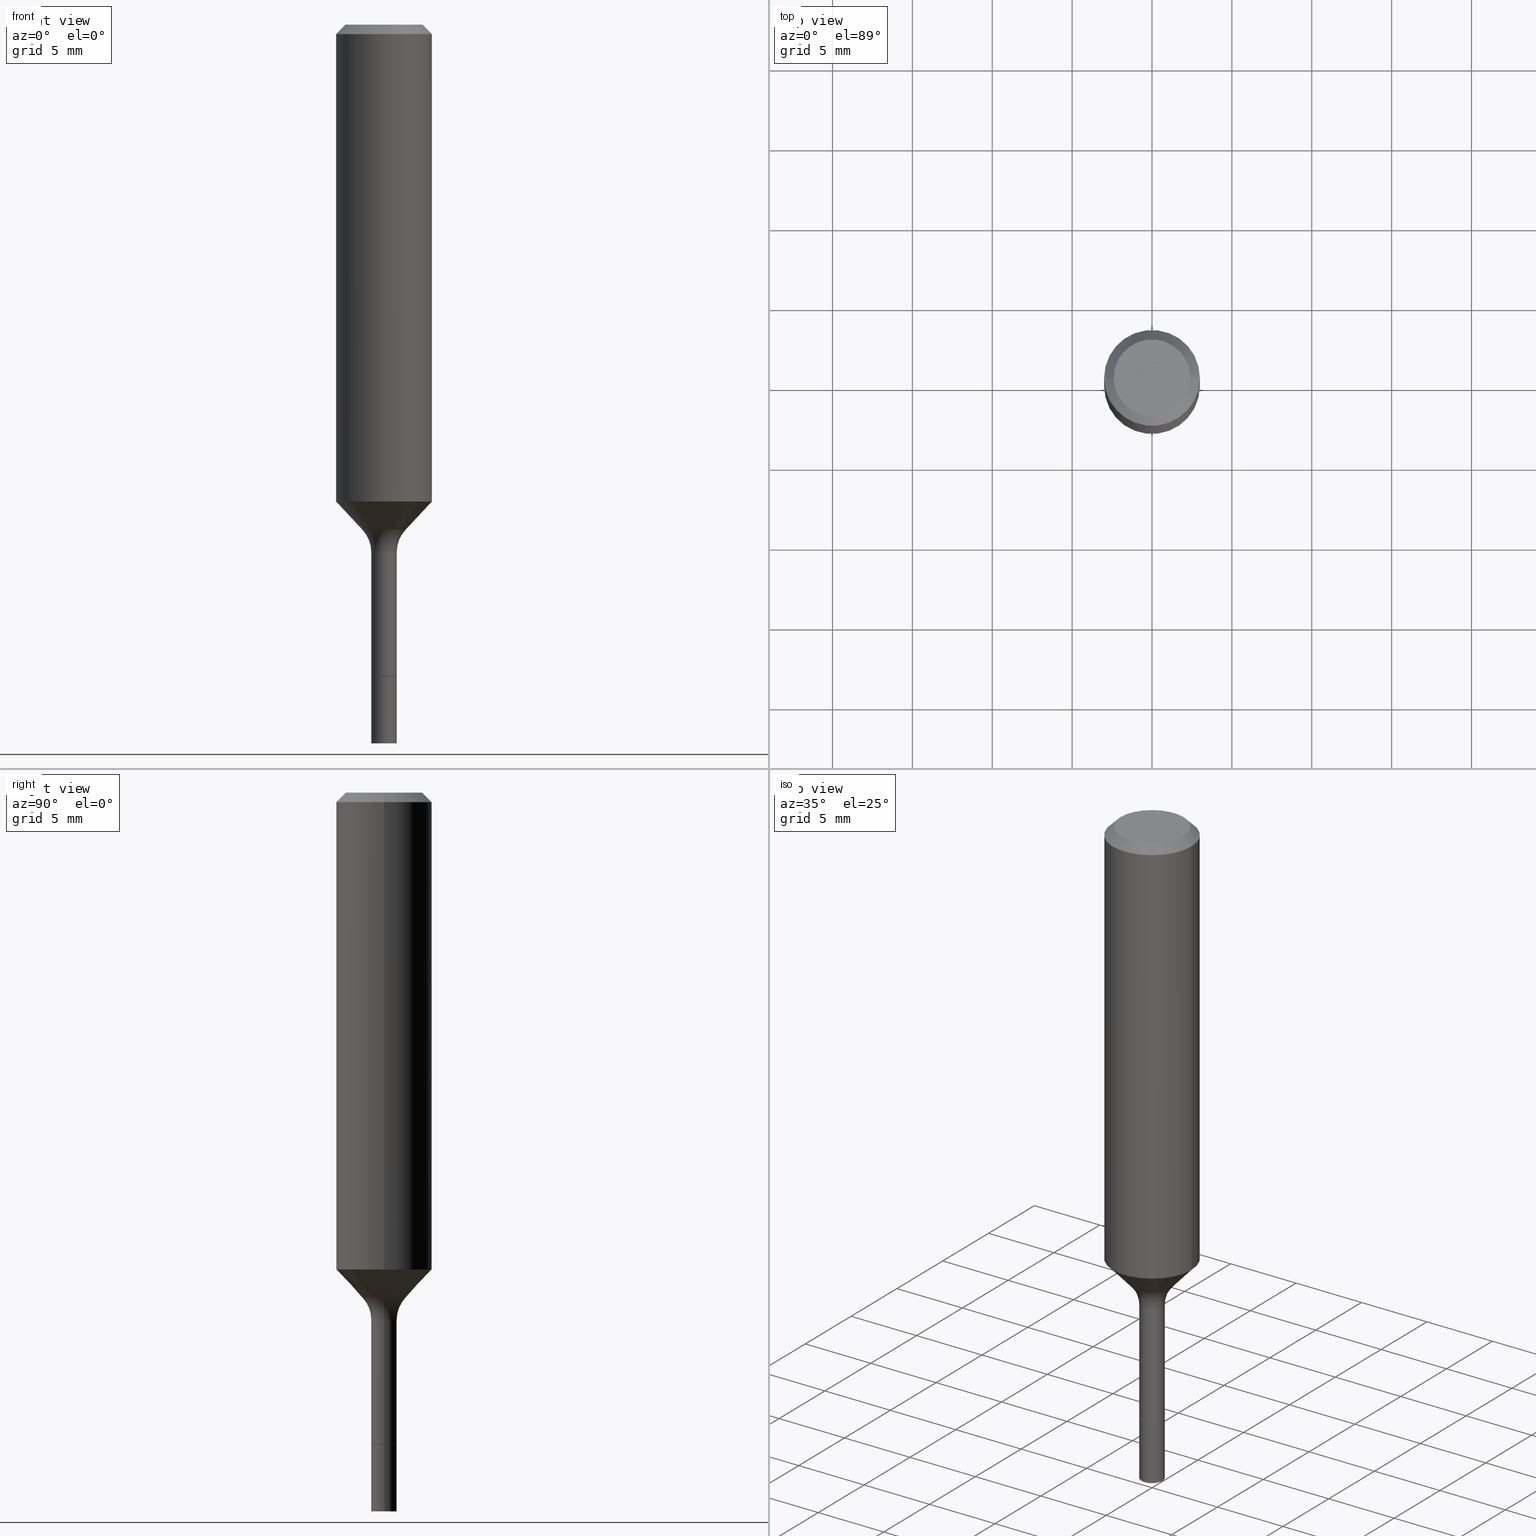
[diagram: canonical four-view strip — front | top / right | iso, engineering-drawing reading convention]
A machine part, canonical four-view strip (front | top / right | iso — engineering-drawing reading convention). The complete STEP part file that produces these views, byte-faithful:
ISO-10303-21;
HEADER;
FILE_DESCRIPTION (( 'STEP AP203' ),
    '1' );
FILE_NAME ('67061.STEP',
    '2025-04-01T15:27:11',
    ( '' ),
    ( '' ),
    'SwSTEP 2.0',
    'SolidWorks 2024',
    '' );
FILE_SCHEMA (( 'CONFIG_CONTROL_DESIGN' ));
ENDSEC;

DATA;
#1 = EDGE_CURVE ( 'NONE', #371, #332, #56, .T. ) ;
#2 = DIRECTION ( 'NONE',  ( -1.000000000000000000, 7.105427357601001859E-15, 0.000000000000000000 ) ) ;
#3 = DIRECTION ( 'NONE',  ( -2.445468806185136597E-29, 3.491481338843145583E-15, 1.000000000000000000 ) ) ;
#4 = ORIENTED_EDGE ( 'NONE', *, *, #303, .F. ) ;
#5 = CIRCLE ( 'NONE', #214, 0.03099999999999999978 ) ;
#6 = LINE ( 'NONE', #87, #180 ) ;
#7 = CARTESIAN_POINT ( 'NONE',  ( 0.1181000000000000660, -8.246878922347485584E-16, 5.758764772215003944E-30 ) ) ;
#8 = APPROVAL_STATUS ( 'not_yet_approved' ) ;
#9 = AXIS2_PLACEMENT_3D ( 'NONE', #17, #375, #100 ) ;
#10 = CARTESIAN_POINT ( 'NONE',  ( 7.545787641473140628E-46, -1.077338491108201769E-31, -3.085620075131671975E-17 ) ) ;
#11 = EDGE_CURVE ( 'NONE', #438, #95, #38, .T. ) ;
#12 = DIRECTION ( 'NONE',  ( -2.445468806185136877E-29, 3.491481338843145188E-15, 1.000000000000000000 ) ) ;
#13 = DIRECTION ( 'NONE',  ( -2.445468806185136597E-29, 3.491481338843145583E-15, 1.000000000000000000 ) ) ;
#14 = CONICAL_SURFACE ( 'NONE', #158, 0.03099999999999999978, 0.7853981633975507526 ) ;
#15 = ORIENTED_EDGE ( 'NONE', *, *, #456, .T. ) ;
#16 = AXIS2_PLACEMENT_3D ( 'NONE', #354, #35, #331 ) ;
#17 = CARTESIAN_POINT ( 'NONE',  ( 2.874208474715579591E-29, -4.103607957718737333E-15, -1.175320031662667297 ) ) ;
#18 = CARTESIAN_POINT ( 'NONE',  ( 3.178375807398822119E-29, -4.537878296094436237E-15, -1.299700000000000077 ) ) ;
#19 = CC_DESIGN_APPROVAL ( #153, ( #113 ) ) ;
#20 = EDGE_LOOP ( 'NONE', ( #497, #512, #167, #284 ) ) ;
#21 = ADVANCED_FACE ( 'NONE', ( #491 ), #239, .T. ) ;
#22 = CARTESIAN_POINT ( 'NONE',  ( 4.332637083918206427E-29, -6.185857488028401081E-15, -1.771700000000000053 ) ) ;
#23 = CIRCLE ( 'NONE', #429, 0.03150000000000032635 ) ;
#24 = LINE ( 'NONE', #189, #203 ) ;
#25 = EDGE_CURVE ( 'NONE', #33, #516, #186, .T. ) ;
#26 = CYLINDRICAL_SURFACE ( 'NONE', #269, 0.03150000000000015982 ) ;
#27 = AXIS2_PLACEMENT_3D ( 'NONE', #518, #129, #250 ) ;
#28 = EDGE_CURVE ( 'NONE', #516, #288, #316, .T. ) ;
#29 = DIRECTION ( 'NONE',  ( -2.445468806185136877E-29, 3.491481338843145188E-15, 1.000000000000000000 ) ) ;
#30 = PERSON_AND_ORGANIZATION ( #68, #313 ) ;
#31 = AXIS2_PLACEMENT_3D ( 'NONE', #145, #184, #307 ) ;
#32 = MECHANICAL_CONTEXT ( 'NONE', #294, 'mechanical' ) ;
#33 = VERTEX_POINT ( 'NONE', #408 ) ;
#34 = PERSON_AND_ORGANIZATION_ROLE ( 'creator' ) ;
#35 = DIRECTION ( 'NONE',  ( -2.438088387897960049E-29, 3.491481338843145188E-15, 1.000000000000000000 ) ) ;
#36 = DIRECTION ( 'NONE',  ( 2.445468806185136597E-29, -3.491481338843145583E-15, -1.000000000000000000 ) ) ;
#37 = EDGE_LOOP ( 'NONE', ( #484, #413, #15, #169 ) ) ;
#38 = CIRCLE ( 'NONE', #110, 0.03099999999999999978 ) ;
#39 = VECTOR ( 'NONE', #98, 39.37007874015748143 ) ;
#40 = VECTOR ( 'NONE', #501, 39.37007874015748854 ) ;
#41 = DIRECTION ( 'NONE',  ( 1.000000000000000000, -6.982962677686276177E-15, 0.000000000000000000 ) ) ;
#42 = ORIENTED_EDGE ( 'NONE', *, *, #177, .T. ) ;
#43 = EDGE_CURVE ( 'NONE', #455, #264, #299, .T. ) ;
#44 = CALENDAR_DATE ( 2025, 1, 4 ) ;
#45 = CARTESIAN_POINT ( 'NONE',  ( -0.03149999999999999328, -4.849126849507717412E-15, -1.606200000000000294 ) ) ;
#46 = COORDINATED_UNIVERSAL_TIME_OFFSET ( 5, 0, .BEHIND. ) ;
#47 = ORIENTED_EDGE ( 'NONE', *, *, #43, .T. ) ;
#48 = PERSON_AND_ORGANIZATION_ROLE ( 'design_owner' ) ;
#49 = CARTESIAN_POINT ( 'NONE',  ( 4.332637083918206427E-29, -6.185857488028401081E-15, -1.771700000000000053 ) ) ;
#50 = EDGE_LOOP ( 'NONE', ( #124, #251, #135, #279 ) ) ;
#51 = COORDINATED_UNIVERSAL_TIME_OFFSET ( 5, 0, .BEHIND. ) ;
#52 = AXIS2_PLACEMENT_3D ( 'NONE', #314, #36, #382 ) ;
#53 = DIRECTION ( 'NONE',  ( 1.000000000000000000, -6.982962677686262766E-15, 0.000000000000000000 ) ) ;
#54 = EDGE_CURVE ( 'NONE', #33, #183, #226, .T. ) ;
#55 = LINE ( 'NONE', #459, #114 ) ;
#56 = LINE ( 'NONE', #7, #200 ) ;
#57 = FACE_OUTER_BOUND ( 'NONE', #118, .T. ) ;
#58 = DIRECTION ( 'NONE',  ( 0.000000000000000000, 0.000000000000000000, 1.000000000000000000 ) ) ;
#59 = DIRECTION ( 'NONE',  ( 2.445468806185136597E-29, -3.491481338843145583E-15, -1.000000000000000000 ) ) ;
#60 = CARTESIAN_POINT ( 'NONE',  ( 0.05299170387046631819, -4.717422622666518249E-15, -1.245140131195000333 ) ) ;
#61 = VECTOR ( 'NONE', #402, 39.37007874015748854 ) ;
#62 = LINE ( 'NONE', #179, #39 ) ;
#63 = EDGE_LOOP ( 'NONE', ( #4, #42, #79, #216 ) ) ;
#64 = ADVANCED_FACE ( 'NONE', ( #57 ), #414, .F. ) ;
#65 = DIRECTION ( 'NONE',  ( 1.000000000000000000, -6.982962677686270655E-15, 0.000000000000000000 ) ) ;
#66 = ORIENTED_EDGE ( 'NONE', *, *, #303, .T. ) ;
#67 = CARTESIAN_POINT ( 'NONE',  ( -0.05299170387046632513, -3.970854829904946346E-15, -1.245140131195000333 ) ) ;
#68 = PERSON ( 'UNSPECIFIED', 'UNSPECIFIED', 'UNSPECIFIED', ('UNSPECIFIED'), ('UNSPECIFIED'), ('UNSPECIFIED') ) ;
#69 = PRODUCT ( '67061', '67061', '', ( #32 ) ) ;
#70 = EDGE_CURVE ( 'NONE', #323, #500, #62, .T. ) ;
#71 = AXIS2_PLACEMENT_3D ( 'NONE', #320, #472, #440 ) ;
#72 = AXIS2_PLACEMENT_3D ( 'NONE', #400, #195, #233 ) ;
#73 = FACE_OUTER_BOUND ( 'NONE', #468, .T. ) ;
#74 = CIRCLE ( 'NONE', #272, 0.05299170387046631819 ) ;
#75 = EDGE_LOOP ( 'NONE', ( #144, #390, #202, #253 ) ) ;
#76 = CYLINDRICAL_SURFACE ( 'NONE', #187, 0.1181000000000000660 ) ;
#77 = SECURITY_CLASSIFICATION_LEVEL ( 'unclassified' ) ;
#78 = CARTESIAN_POINT ( 'NONE',  ( 3.044951350166641227E-29, -4.347383532312049754E-15, -1.245140131195000333 ) ) ;
#79 = ORIENTED_EDGE ( 'NONE', *, *, #270, .T. ) ;
#80 = CARTESIAN_POINT ( 'NONE',  ( 0.000000000000000000, 0.000000000000000000, 0.000000000000000000 ) ) ;
#81 = EDGE_CURVE ( 'NONE', #159, #450, #55, .T. ) ;
#82 = DIRECTION ( 'NONE',  ( 1.000000000000000000, -6.982962677686267499E-15, 4.883557194083113462E-29 ) ) ;
#83 = ORIENTED_EDGE ( 'NONE', *, *, #482, .T. ) ;
#84 = CIRCLE ( 'NONE', #480, 0.03150000000000000022 ) ;
#85 = DIRECTION ( 'NONE',  ( 2.438088387897960049E-29, -3.491481338843145188E-15, -1.000000000000000000 ) ) ;
#86 = CIRCLE ( 'NONE', #483, 0.1180999999999999966 ) ;
#87 = CARTESIAN_POINT ( 'NONE',  ( -0.03099999999999999978, -5.389494819033650773E-15, -1.606700000000000017 ) ) ;
#88 = EDGE_LOOP ( 'NONE', ( #377, #475 ) ) ;
#89 = APPROVAL_PERSON_ORGANIZATION ( #485, #153, #173 ) ;
#90 = CARTESIAN_POINT ( 'NONE',  ( -0.1181000000000001354, -3.264456986786058347E-15, -1.175320031662667297 ) ) ;
#91 = ORIENTED_EDGE ( 'NONE', *, *, #492, .T. ) ;
#92 = APPROVAL_ROLE ( '' ) ;
#93 = APPROVAL ( #447, 'UNSPECIFIED' ) ;
#94 = CARTESIAN_POINT ( 'NONE',  ( -0.03149999999999998634, 2.238209617644314615E-16, -1.549464553430294451E-30 ) ) ;
#95 = VERTEX_POINT ( 'NONE', #257 ) ;
#96 = AXIS2_PLACEMENT_3D ( 'NONE', #454, #59, #217 ) ;
#97 = FACE_OUTER_BOUND ( 'NONE', #88, .T. ) ;
#98 = DIRECTION ( 'NONE',  ( -2.445468806185136877E-29, 3.491481338843145188E-15, 1.000000000000000000 ) ) ;
#99 = ORIENTED_EDGE ( 'NONE', *, *, #506, .F. ) ;
#100 = DIRECTION ( 'NONE',  ( 1.000000000000000000, -6.982962677686269077E-15, 0.000000000000000000 ) ) ;
#101 = EDGE_LOOP ( 'NONE', ( #471, #344 ) ) ;
#102 = ADVANCED_FACE ( 'NONE', ( #306 ), #415, .F. ) ;
#103 = VERTEX_POINT ( 'NONE', #490 ) ;
#104 = CONICAL_SURFACE ( 'NONE', #96, 0.1180999999999999966, 0.7853981633974463916 ) ;
#105 = DIRECTION ( 'NONE',  ( -2.445468806185136597E-29, 3.491481338843145583E-15, 1.000000000000000000 ) ) ;
#106 = ORIENTED_EDGE ( 'NONE', *, *, #281, .T. ) ;
#107 = ADVANCED_FACE ( 'NONE', ( #215 ), #395, .T. ) ;
#108 = CARTESIAN_POINT ( 'NONE',  ( -0.03149999999999995859, -4.849126849507717412E-15, -1.299700000000000077 ) ) ;
#109 = DIRECTION ( 'NONE',  ( -2.445468806185136597E-29, 3.491481338843145583E-15, 1.000000000000000000 ) ) ;
#110 = AXIS2_PLACEMENT_3D ( 'NONE', #172, #175, #337 ) ;
#111 = AXIS2_PLACEMENT_3D ( 'NONE', #462, #225, #149 ) ;
#112 = LOCAL_TIME ( 11, 27, 11.00000000000000000, #398 ) ;
#113 = PRODUCT_DEFINITION ( 'UNKNOWN', '', #154, #234 ) ;
#114 = VECTOR ( 'NONE', #146, 39.37007874015748143 ) ;
#115 = ORIENTED_EDGE ( 'NONE', *, *, #293, .F. ) ;
#116 = PERSON_AND_ORGANIZATION ( #68, #313 ) ;
#117 = CARTESIAN_POINT ( 'NONE',  ( 7.545787641473140628E-46, -1.077338491108201769E-31, -3.085620075131671975E-17 ) ) ;
#118 = EDGE_LOOP ( 'NONE', ( #106, #91 ) ) ;
#119 = ADVANCED_FACE ( 'NONE', ( #339 ), #104, .T. ) ;
#120 = CALENDAR_DATE ( 2025, 1, 4 ) ;
#121 = DIRECTION ( 'NONE',  ( -2.445468806185136877E-29, 3.491481338843145188E-15, 1.000000000000000000 ) ) ;
#122 = ORIENTED_EDGE ( 'NONE', *, *, #412, .T. ) ;
#123 = CARTESIAN_POINT ( 'NONE',  ( 0.1181000000000001354, -4.928295849953486385E-15, -1.175320031662667297 ) ) ;
#124 = ORIENTED_EDGE ( 'NONE', *, *, #43, .F. ) ;
#125 = AXIS2_PLACEMENT_3D ( 'NONE', #499, #374, #494 ) ;
#126 = CIRCLE ( 'NONE', #439, 0.09447999999999998066 ) ;
#127 = APPLICATION_PROTOCOL_DEFINITION ( 'international standard', 'config_control_design', 1994, #150 ) ;
#128 = CARTESIAN_POINT ( 'NONE',  ( 0.000000000000000000, 0.000000000000000000, 0.000000000000000000 ) ) ;
#129 = DIRECTION ( 'NONE',  ( -2.445468806185136597E-29, 3.491481338843145583E-15, 1.000000000000000000 ) ) ;
#130 = ORIENTED_EDGE ( 'NONE', *, *, #218, .T. ) ;
#131 = DATE_TIME_ROLE ( 'creation_date' ) ;
#132 = DIRECTION ( 'NONE',  ( -6.982962677686266711E-15, -1.000000000000000000, 3.491481338843145583E-15 ) ) ;
#133 = APPROVAL_PERSON_ORGANIZATION ( #30, #138, #473 ) ;
#134 = DIRECTION ( 'NONE',  ( 1.000000000000000000, -6.982962677686267499E-15, 4.875432709231658792E-29 ) ) ;
#135 = ORIENTED_EDGE ( 'NONE', *, *, #70, .T. ) ;
#136 = ORIENTED_EDGE ( 'NONE', *, *, #281, .F. ) ;
#137 = AXIS2_PLACEMENT_3D ( 'NONE', #252, #393, #157 ) ;
#138 = APPROVAL ( #321, 'UNSPECIFIED' ) ;
#139 = AXIS2_PLACEMENT_3D ( 'NONE', #367, #132, #53 ) ;
#140 = ORIENTED_EDGE ( 'NONE', *, *, #325, .F. ) ;
#141 =( LENGTH_UNIT ( ) NAMED_UNIT ( * ) SI_UNIT ( $, .METRE. ) );
#142 = EDGE_CURVE ( 'NONE', #323, #455, #23, .T. ) ;
#143 = DIRECTION ( 'NONE',  ( -2.445468806185136597E-29, 3.491481338843145583E-15, 1.000000000000000000 ) ) ;
#144 = ORIENTED_EDGE ( 'NONE', *, *, #54, .T. ) ;
#145 = CARTESIAN_POINT ( 'NONE',  ( 3.929134730897659292E-29, -5.609763067119282027E-15, -1.606700000000000017 ) ) ;
#146 = DIRECTION ( 'NONE',  ( -0.7071067811865461294, 2.468850131082242072E-15, -0.7071067811865489050 ) ) ;
#147 = ORIENTED_EDGE ( 'NONE', *, *, #81, .F. ) ;
#148 = ADVANCED_FACE ( 'NONE', ( #433 ), #165, .T. ) ;
#149 = DIRECTION ( 'NONE',  ( 1.000000000000000000, -6.982962677686265133E-15, 0.000000000000000000 ) ) ;
#150 = APPLICATION_CONTEXT ( 'configuration controlled 3d designs of mechanical parts and assemblies' ) ;
#151 = DIRECTION ( 'NONE',  ( 0.7071067811866199593, -2.468850131083015945E-15, 0.7071067811864750752 ) ) ;
#152 = AXIS2_PLACEMENT_3D ( 'NONE', #128, #286, #444 ) ;
#153 = APPROVAL ( #8, 'UNSPECIFIED' ) ;
#154 = PRODUCT_DEFINITION_FORMATION_WITH_SPECIFIED_SOURCE ( 'ANY', '', #69, .NOT_KNOWN. ) ;
#155 =( NAMED_UNIT ( * ) PLANE_ANGLE_UNIT ( ) SI_UNIT ( $, .RADIAN. ) );
#156 = CARTESIAN_POINT ( 'NONE',  ( 3.929134730897659292E-29, -5.609763067119282027E-15, -1.606700000000000017 ) ) ;
#157 = DIRECTION ( 'NONE',  ( 1.000000000000000000, -6.982962677686261189E-15, 0.000000000000000000 ) ) ;
#158 = AXIS2_PLACEMENT_3D ( 'NONE', #156, #481, #368 ) ;
#159 = VERTEX_POINT ( 'NONE', #363 ) ;
#160 = ADVANCED_FACE ( 'NONE', ( #330 ), #14, .T. ) ;
#161 = FACE_OUTER_BOUND ( 'NONE', #164, .T. ) ;
#162 = DATE_AND_TIME ( #120, #258 ) ;
#163 = CARTESIAN_POINT ( 'NONE',  ( 3.927911996494567051E-29, -5.608017326449861312E-15, -1.606200000000000294 ) ) ;
#164 = EDGE_LOOP ( 'NONE', ( #488, #130, #99, #276 ) ) ;
#165 = CYLINDRICAL_SURFACE ( 'NONE', #386, 0.1181000000000000660 ) ;
#166 = DIRECTION ( 'NONE',  ( -2.445468806185136597E-29, 3.491481338843145583E-15, 1.000000000000000000 ) ) ;
#167 = ORIENTED_EDGE ( 'NONE', *, *, #25, .T. ) ;
#168 = PLANE ( 'NONE',  #16 ) ;
#169 = ORIENTED_EDGE ( 'NONE', *, *, #392, .F. ) ;
#170 = CONICAL_SURFACE ( 'NONE', #71, 0.05299170387046631819, 0.7504915783575633048 ) ;
#171 = LINE ( 'NONE', #94, #242 ) ;
#172 = CARTESIAN_POINT ( 'NONE',  ( 3.929134730897659292E-29, -5.609763067119282027E-15, -1.606700000000000017 ) ) ;
#173 = APPROVAL_ROLE ( '' ) ;
#174 = DIRECTION ( 'NONE',  ( -2.445468806185136597E-29, 3.491481338843145583E-15, 1.000000000000000000 ) ) ;
#175 = DIRECTION ( 'NONE',  ( -2.445468806185136597E-29, 3.491481338843145583E-15, 1.000000000000000000 ) ) ;
#176 = DIRECTION ( 'NONE',  ( 1.000000000000000000, -6.982962677686276177E-15, 0.000000000000000000 ) ) ;
#177 = EDGE_CURVE ( 'NONE', #510, #288, #453, .T. ) ;
#178 = CIRCLE ( 'NONE', #111, 0.03149999999999995859 ) ;
#179 = CARTESIAN_POINT ( 'NONE',  ( 0.03150000000000015982, -5.829726391466400943E-15, -1.606700000000000017 ) ) ;
#180 = VECTOR ( 'NONE', #449, 39.37007874015748143 ) ;
#181 = CARTESIAN_POINT ( 'NONE',  ( 0.03149999999999995859, -4.757841620441553575E-15, -1.299700000000000077 ) ) ;
#182 = DIRECTION ( 'NONE',  ( -2.445468806185136877E-29, 3.491481338843145188E-15, 1.000000000000000000 ) ) ;
#183 = VERTEX_POINT ( 'NONE', #45 ) ;
#184 = DIRECTION ( 'NONE',  ( -2.445468806185136597E-29, 3.491481338843145583E-15, 1.000000000000000000 ) ) ;
#185 = CC_DESIGN_DATE_AND_TIME_ASSIGNMENT ( #285, #131, ( #113 ) ) ;
#186 = LINE ( 'NONE', #343, #220 ) ;
#187 = AXIS2_PLACEMENT_3D ( 'NONE', #80, #232, #249 ) ;
#188 = DIRECTION ( 'NONE',  ( -1.000000000000000000, 6.982962677686265922E-15, -4.876176775795935793E-29 ) ) ;
#189 = CARTESIAN_POINT ( 'NONE',  ( 0.03099999999999999978, -5.826234910127556358E-15, -1.606700000000000017 ) ) ;
#190 = CARTESIAN_POINT ( 'NONE',  ( 3.929134730897659292E-29, -5.609763067119282027E-15, -1.606700000000000017 ) ) ;
#191 = ADVANCED_FACE ( 'NONE', ( #333 ), #76, .T. ) ;
#192 = AXIS2_PLACEMENT_3D ( 'NONE', #287, #166, #82 ) ;
#193 = VECTOR ( 'NONE', #29, 39.37007874015748143 ) ;
#194 = ADVANCED_FACE ( 'NONE', ( #243 ), #237, .T. ) ;
#195 = DIRECTION ( 'NONE',  ( -2.445468806185136597E-29, 3.491481338843145583E-15, 1.000000000000000000 ) ) ;
#196 = ORIENTED_EDGE ( 'NONE', *, *, #428, .F. ) ;
#197 = CALENDAR_DATE ( 2025, 1, 4 ) ;
#198 = CARTESIAN_POINT ( 'NONE',  ( -0.05299170387046631819, -3.970854829904947135E-15, -1.245140131195000333 ) ) ;
#199 = PERSON_AND_ORGANIZATION ( #68, #313 ) ;
#200 = VECTOR ( 'NONE', #12, 39.37007874015748143 ) ;
#201 = AXIS2_PLACEMENT_3D ( 'NONE', #411, #296, #65 ) ;
#202 = ORIENTED_EDGE ( 'NONE', *, *, #28, .F. ) ;
#203 = VECTOR ( 'NONE', #151, 39.37007874015748143 ) ;
#204 = CIRCLE ( 'NONE', #9, 0.1181000000000001354 ) ;
#205 = CARTESIAN_POINT ( 'NONE',  ( 0.03150000000000032635, -6.405820812375520786E-15, -1.771700000000000053 ) ) ;
#206 = EDGE_LOOP ( 'NONE', ( #355, #261, #458, #219 ) ) ;
#207 = LOCAL_TIME ( 11, 27, 11.00000000000000000, #51 ) ;
#208 = CC_DESIGN_DATE_AND_TIME_ASSIGNMENT ( #162, #244, ( #341 ) ) ;
#209 = COORDINATED_UNIVERSAL_TIME_OFFSET ( 5, 0, .BEHIND. ) ;
#210 = FACE_OUTER_BOUND ( 'NONE', #304, .T. ) ;
#211 = ORIENTED_EDGE ( 'NONE', *, *, #362, .T. ) ;
#212 = EDGE_CURVE ( 'NONE', #332, #450, #297, .T. ) ;
#213 = EDGE_LOOP ( 'NONE', ( #315, #479, #403, #147 ) ) ;
#214 = AXIS2_PLACEMENT_3D ( 'NONE', #434, #478, #278 ) ;
#215 = FACE_OUTER_BOUND ( 'NONE', #37, .T. ) ;
#216 = ORIENTED_EDGE ( 'NONE', *, *, #469, .F. ) ;
#217 = DIRECTION ( 'NONE',  ( -1.000000000000000000, 6.982962677686266711E-15, 0.000000000000000000 ) ) ;
#218 = EDGE_CURVE ( 'NONE', #510, #361, #391, .T. ) ;
#219 = ORIENTED_EDGE ( 'NONE', *, *, #28, .T. ) ;
#220 = VECTOR ( 'NONE', #263, 39.37007874015748143 ) ;
#221 = AXIS2_PLACEMENT_3D ( 'NONE', #18, #143, #260 ) ;
#222 = CARTESIAN_POINT ( 'NONE',  ( -0.03150000000000015982, -5.385942105354849086E-15, -1.606700000000000017 ) ) ;
#223 = ORIENTED_EDGE ( 'NONE', *, *, #506, .T. ) ;
#224 = LOCAL_TIME ( 11, 27, 11.00000000000000000, #489 ) ;
#225 = DIRECTION ( 'NONE',  ( -2.445468806185136597E-29, 3.491481338843145583E-15, 1.000000000000000000 ) ) ;
#226 = CIRCLE ( 'NONE', #347, 0.03150000000000000022 ) ;
#227 = CIRCLE ( 'NONE', #139, 0.07999999999999996003 ) ;
#228 = ADVANCED_FACE ( 'NONE', ( #477 ), #280, .T. ) ;
#229 = PERSON_AND_ORGANIZATION_ROLE ( 'design_supplier' ) ;
#230 = ADVANCED_FACE ( 'NONE', ( #161 ), #170, .T. ) ;
#231 = ORIENTED_EDGE ( 'NONE', *, *, #142, .T. ) ;
#232 = DIRECTION ( 'NONE',  ( -2.445468806185136597E-29, 3.491481338843145583E-15, 1.000000000000000000 ) ) ;
#233 = DIRECTION ( 'NONE',  ( 1.000000000000000000, -6.982962677686269077E-15, 0.000000000000000000 ) ) ;
#234 = DESIGN_CONTEXT ( 'detailed design', #150, 'design' ) ;
#235 = ORIENTED_EDGE ( 'NONE', *, *, #212, .F. ) ;
#236 = PERSON_AND_ORGANIZATION ( #68, #313 ) ;
#237 = CYLINDRICAL_SURFACE ( 'NONE', #152, 0.03149999999999998634 ) ;
#238 = FACE_OUTER_BOUND ( 'NONE', #20, .T. ) ;
#239 = CONICAL_SURFACE ( 'NONE', #52, 0.1180999999999999966, 0.7853981633974463916 ) ;
#240 = EDGE_LOOP ( 'NONE', ( #211, #300, #292, #407 ) ) ;
#241 = PERSON_AND_ORGANIZATION ( #68, #313 ) ;
#242 = VECTOR ( 'NONE', #121, 39.37007874015748143 ) ;
#243 = FACE_OUTER_BOUND ( 'NONE', #75, .T. ) ;
#244 = DATE_TIME_ROLE ( 'classification_date' ) ;
#245 = CARTESIAN_POINT ( 'NONE',  ( 0.09447999999999998066, -7.704367267948738690E-16, -3.085620075131172158E-17 ) ) ;
#246 = ORIENTED_EDGE ( 'NONE', *, *, #1, .F. ) ;
#247 = CC_DESIGN_PERSON_AND_ORGANIZATION_ASSIGNMENT ( #236, #48, ( #69 ) ) ;
#248 = LOCAL_TIME ( 11, 27, 11.00000000000000000, #46 ) ;
#249 = DIRECTION ( 'NONE',  ( 1.000000000000000000, -6.982962677686266711E-15, 4.876176775795936353E-29 ) ) ;
#250 = DIRECTION ( 'NONE',  ( 1.000000000000000000, -6.982962677686281699E-15, 0.000000000000000000 ) ) ;
#251 = ORIENTED_EDGE ( 'NONE', *, *, #293, .T. ) ;
#252 = CARTESIAN_POINT ( 'NONE',  ( 3.044951350166641227E-29, -4.347383532312049754E-15, -1.245140131195000333 ) ) ;
#253 = ORIENTED_EDGE ( 'NONE', *, *, #25, .F. ) ;
#254 = AXIS2_PLACEMENT_3D ( 'NONE', #383, #424, #188 ) ;
#255 = EDGE_CURVE ( 'NONE', #394, #159, #262, .T. ) ;
#256 = PLANE ( 'NONE',  #254 ) ;
#257 = CARTESIAN_POINT ( 'NONE',  ( 0.03099999999999999978, -5.826234910127556358E-15, -1.606700000000000017 ) ) ;
#258 = LOCAL_TIME ( 11, 27, 11.00000000000000000, #209 ) ;
#259 = DIRECTION ( 'NONE',  ( 1.000000000000000000, -6.982962677686255667E-15, 0.000000000000000000 ) ) ;
#260 = DIRECTION ( 'NONE',  ( 1.000000000000000000, -6.982962677686265133E-15, 0.000000000000000000 ) ) ;
#261 = ORIENTED_EDGE ( 'NONE', *, *, #379, .F. ) ;
#262 = CIRCLE ( 'NONE', #378, 0.09447999999999998066 ) ;
#263 = DIRECTION ( 'NONE',  ( -2.445468806185136877E-29, 3.491481338843145188E-15, 1.000000000000000000 ) ) ;
#264 = VERTEX_POINT ( 'NONE', #452 ) ;
#265 = DIRECTION ( 'NONE',  ( -2.445468806185136597E-29, 3.491481338843145583E-15, 1.000000000000000000 ) ) ;
#266 = AXIS2_PLACEMENT_3D ( 'NONE', #22, #265, #41 ) ;
#267 = CARTESIAN_POINT ( 'NONE',  ( -0.03150000000000032635, -5.673989315809405852E-15, -1.771700000000000053 ) ) ;
#268 = ADVANCED_FACE ( 'NONE', ( #97 ), #256, .F. ) ;
#269 = AXIS2_PLACEMENT_3D ( 'NONE', #190, #351, #464 ) ;
#270 = EDGE_CURVE ( 'NONE', #288, #516, #178, .T. ) ;
#271 = ADVANCED_BREP_SHAPE_REPRESENTATION ( '67061', ( #338, #503, #496 ), #423 ) ;
#272 = AXIS2_PLACEMENT_3D ( 'NONE', #78, #282, #445 ) ;
#273 = EDGE_LOOP ( 'NONE', ( #223, #431, #235, #246 ) ) ;
#274 = DIRECTION ( 'NONE',  ( -2.445468806185136597E-29, 3.491481338843145583E-15, 1.000000000000000000 ) ) ;
#275 = CC_DESIGN_APPROVAL ( #138, ( #341 ) ) ;
#276 = ORIENTED_EDGE ( 'NONE', *, *, #482, .F. ) ;
#277 = APPROVAL_DATE_TIME ( #389, #138 ) ;
#278 = DIRECTION ( 'NONE',  ( 1.000000000000000000, -6.982962677686270655E-15, 0.000000000000000000 ) ) ;
#279 = ORIENTED_EDGE ( 'NONE', *, *, #492, .F. ) ;
#280 = PLANE ( 'NONE',  #283 ) ;
#281 = EDGE_CURVE ( 'NONE', #500, #264, #84, .T. ) ;
#282 = DIRECTION ( 'NONE',  ( -2.445468806185136597E-29, 3.491481338843145583E-15, 1.000000000000000000 ) ) ;
#283 = AXIS2_PLACEMENT_3D ( 'NONE', #49, #85, #514 ) ;
#284 = ORIENTED_EDGE ( 'NONE', *, *, #270, .F. ) ;
#285 = DATE_AND_TIME ( #44, #112 ) ;
#286 = DIRECTION ( 'NONE',  ( -2.445468806185136597E-29, 3.491481338843145583E-15, 1.000000000000000000 ) ) ;
#287 = CARTESIAN_POINT ( 'NONE',  ( 3.178375807398822119E-29, -4.537878296094436237E-15, -1.299700000000000077 ) ) ;
#288 = VERTEX_POINT ( 'NONE', #108 ) ;
#289 = PERSON_AND_ORGANIZATION ( #68, #313 ) ;
#290 = LINE ( 'NONE', #60, #40 ) ;
#291 = CARTESIAN_POINT ( 'NONE',  ( 0.000000000000000000, 0.000000000000000000, 0.000000000000000000 ) ) ;
#292 = ORIENTED_EDGE ( 'NONE', *, *, #54, .F. ) ;
#293 = EDGE_CURVE ( 'NONE', #455, #323, #463, .T. ) ;
#294 = APPLICATION_CONTEXT ( 'configuration controlled 3d designs of mechanical parts and assemblies' ) ;
#295 = DIRECTION ( 'NONE',  ( 1.000000000000000000, -6.982962677686267499E-15, 4.875432709231658792E-29 ) ) ;
#296 = DIRECTION ( 'NONE',  ( -2.445468806185136597E-29, 3.491481338843145583E-15, 1.000000000000000000 ) ) ;
#297 = CIRCLE ( 'NONE', #502, 0.1180999999999999966 ) ;
#298 = CIRCLE ( 'NONE', #72, 0.1181000000000001354 ) ;
#299 = LINE ( 'NONE', #222, #513 ) ;
#300 = ORIENTED_EDGE ( 'NONE', *, *, #385, .T. ) ;
#301 = LENGTH_MEASURE_WITH_UNIT ( LENGTH_MEASURE( 0.02539999999999999897 ), #141 );
#302 = CARTESIAN_POINT ( 'NONE',  ( 3.178375807398822119E-29, -4.537878296094436237E-15, -1.299700000000000077 ) ) ;
#303 = EDGE_CURVE ( 'NONE', #510, #103, #356, .T. ) ;
#304 = EDGE_LOOP ( 'NONE', ( #366, #66, #83, #495 ) ) ;
#305 = AXIS2_PLACEMENT_3D ( 'NONE', #474, #470, #396 ) ;
#306 = FACE_OUTER_BOUND ( 'NONE', #206, .T. ) ;
#307 = DIRECTION ( 'NONE',  ( 1.000000000000000000, -6.982962677686255667E-15, 0.000000000000000000 ) ) ;
#308 = DIRECTION ( 'NONE',  ( 1.000000000000000000, -6.982962677686255667E-15, 0.000000000000000000 ) ) ;
#309 = CC_DESIGN_SECURITY_CLASSIFICATION ( #341, ( #154 ) ) ;
#310 = ADVANCED_FACE ( 'NONE', ( #210 ), #493, .T. ) ;
#311 = CARTESIAN_POINT ( 'NONE',  ( 5.776197320209326656E-31, -8.246878922347558061E-17, -0.02362000000000013741 ) ) ;
#312 = LINE ( 'NONE', #467, #193 ) ;
#313 = ORGANIZATION ( 'UNSPECIFIED', 'UNSPECIFIED', '' ) ;
#314 = CARTESIAN_POINT ( 'NONE',  ( 5.776197320209326656E-31, -8.246878922347558061E-17, -0.02362000000000013741 ) ) ;
#315 = ORIENTED_EDGE ( 'NONE', *, *, #255, .F. ) ;
#316 = CIRCLE ( 'NONE', #221, 0.03149999999999995859 ) ;
#317 = DIRECTION ( 'NONE',  ( 7.105427357601001859E-15, 1.000000000000000000, -3.491481338843145583E-15 ) ) ;
#318 = APPROVAL_DATE_TIME ( #441, #93 ) ;
#319 = EDGE_LOOP ( 'NONE', ( #328, #115 ) ) ;
#320 = CARTESIAN_POINT ( 'NONE',  ( 3.044951350166641227E-29, -4.347383532312049754E-15, -1.245140131195000333 ) ) ;
#321 = APPROVAL_STATUS ( 'not_yet_approved' ) ;
#322 = LINE ( 'NONE', #515, #360 ) ;
#323 = VERTEX_POINT ( 'NONE', #205 ) ;
#324 = APPROVAL_DATE_TIME ( #329, #153 ) ;
#325 = EDGE_CURVE ( 'NONE', #159, #394, #126, .T. ) ;
#326 = DIRECTION ( 'NONE',  ( 1.000000000000000000, -6.982962677686266711E-15, 0.000000000000000000 ) ) ;
#327 = CYLINDRICAL_SURFACE ( 'NONE', #305, 0.03149999999999998634 ) ;
#328 = ORIENTED_EDGE ( 'NONE', *, *, #142, .F. ) ;
#329 = DATE_AND_TIME ( #197, #224 ) ;
#330 = FACE_OUTER_BOUND ( 'NONE', #240, .T. ) ;
#331 = DIRECTION ( 'NONE',  ( 1.000000000000000000, -6.982962677686265922E-15, 4.876176775795935793E-29 ) ) ;
#332 = VERTEX_POINT ( 'NONE', #487 ) ;
#333 = FACE_OUTER_BOUND ( 'NONE', #443, .T. ) ;
#334 = CARTESIAN_POINT ( 'NONE',  ( 3.044951350166641227E-29, -4.347383532312049754E-15, -1.245140131195000333 ) ) ;
#335 = ADVANCED_FACE ( 'NONE', ( #365 ), #373, .T. ) ;
#336 = CC_DESIGN_APPROVAL ( #93, ( #154 ) ) ;
#337 = DIRECTION ( 'NONE',  ( 1.000000000000000000, -6.982962677686270655E-15, 0.000000000000000000 ) ) ;
#338 = MANIFOLD_SOLID_BREP ( 'Body-Move/Copy2[1]', #451 ) ;
#339 = FACE_OUTER_BOUND ( 'NONE', #213, .T. ) ;
#340 = UNCERTAINTY_MEASURE_WITH_UNIT (LENGTH_MEASURE( 1.000000000000000082E-05 ), #410, 'distance_accuracy_value', 'NONE');
#341 = SECURITY_CLASSIFICATION ( '', '', #77 ) ;
#342 = ADVANCED_FACE ( 'NONE', ( #359 ), #460, .F. ) ;
#343 = CARTESIAN_POINT ( 'NONE',  ( 0.03149999999999998634, -2.199633243471172643E-16, 1.535995684375719011E-30 ) ) ;
#344 = ORIENTED_EDGE ( 'NONE', *, *, #11, .F. ) ;
#345 = PRODUCT_DEFINITION_SHAPE ( 'NONE', 'NONE',  #113 ) ;
#346 = CARTESIAN_POINT ( 'NONE',  ( 3.927911996494567051E-29, -5.608017326449861312E-15, -1.606200000000000294 ) ) ;
#347 = AXIS2_PLACEMENT_3D ( 'NONE', #346, #380, #259 ) ;
#348 = CARTESIAN_POINT ( 'NONE',  ( 3.929134730897659292E-29, -5.609763067119282027E-15, -1.606700000000000017 ) ) ;
#349 = ADVANCED_FACE ( 'NONE', ( #238 ), #327, .T. ) ;
#350 = CARTESIAN_POINT ( 'NONE',  ( -0.1180999999999999966, -1.253887402538427015E-15, -0.02362000000000013741 ) ) ;
#351 = DIRECTION ( 'NONE',  ( -2.445468806185136597E-29, 3.491481338843145583E-15, 1.000000000000000000 ) ) ;
#352 = AXIS2_PLACEMENT_3D ( 'NONE', #334, #3, #437 ) ;
#353 = APPROVAL_PERSON_ORGANIZATION ( #289, #93, #92 ) ;
#354 = CARTESIAN_POINT ( 'NONE',  ( 3.929134730897659292E-29, -5.609763067119282027E-15, -1.606700000000000017 ) ) ;
#355 = ORIENTED_EDGE ( 'NONE', *, *, #177, .F. ) ;
#356 = CIRCLE ( 'NONE', #137, 0.05299170387046631819 ) ;
#357 = DIRECTION ( 'NONE',  ( 1.000000000000000000, -6.982962677686266711E-15, 4.876176775795936353E-29 ) ) ;
#358 = PERSON_AND_ORGANIZATION_ROLE ( 'classification_officer' ) ;
#359 = FACE_OUTER_BOUND ( 'NONE', #63, .T. ) ;
#360 = VECTOR ( 'NONE', #511, 39.37007874015748143 ) ;
#361 = VERTEX_POINT ( 'NONE', #90 ) ;
#362 = EDGE_CURVE ( 'NONE', #95, #438, #5, .T. ) ;
#363 = CARTESIAN_POINT ( 'NONE',  ( -0.09447999999999998066, 7.009847083995354710E-16, -3.085620075132147757E-17 ) ) ;
#364 = CALENDAR_DATE ( 2025, 1, 4 ) ;
#365 = FACE_OUTER_BOUND ( 'NONE', #50, .T. ) ;
#366 = ORIENTED_EDGE ( 'NONE', *, *, #218, .F. ) ;
#367 = CARTESIAN_POINT ( 'NONE',  ( 0.1114999999999999603, -5.316478634656455228E-15, -1.299700000000000077 ) ) ;
#368 = DIRECTION ( 'NONE',  ( 1.000000000000000000, -6.982962677686270655E-15, 0.000000000000000000 ) ) ;
#369 = CALENDAR_DATE ( 2025, 1, 4 ) ;
#370 = FACE_OUTER_BOUND ( 'NONE', #101, .T. ) ;
#371 = VERTEX_POINT ( 'NONE', #123 ) ;
#372 = CC_DESIGN_PERSON_AND_ORGANIZATION_ASSIGNMENT ( #241, #476, ( #113 ) ) ;
#373 = CYLINDRICAL_SURFACE ( 'NONE', #27, 0.03150000000000015982 ) ;
#374 = DIRECTION ( 'NONE',  ( 2.438088387897960049E-29, -3.491481338843145188E-15, -1.000000000000000000 ) ) ;
#375 = DIRECTION ( 'NONE',  ( -2.445468806185136597E-29, 3.491481338843145583E-15, 1.000000000000000000 ) ) ;
#376 = CARTESIAN_POINT ( 'NONE',  ( 4.332637083918206427E-29, -6.185857488028401081E-15, -1.771700000000000053 ) ) ;
#377 = ORIENTED_EDGE ( 'NONE', *, *, #325, .T. ) ;
#378 = AXIS2_PLACEMENT_3D ( 'NONE', #10, #174, #295 ) ;
#379 = EDGE_CURVE ( 'NONE', #103, #510, #74, .T. ) ;
#380 = DIRECTION ( 'NONE',  ( -2.445468806185136597E-29, 3.491481338843145583E-15, 1.000000000000000000 ) ) ;
#381 = CC_DESIGN_PERSON_AND_ORGANIZATION_ASSIGNMENT ( #116, #229, ( #154 ) ) ;
#382 = DIRECTION ( 'NONE',  ( -1.000000000000000000, 6.982962677686266711E-15, 0.000000000000000000 ) ) ;
#383 = CARTESIAN_POINT ( 'NONE',  ( 3.772893820736570314E-46, -5.386692455541008845E-32, -1.542810037565835988E-17 ) ) ;
#384 = DIMENSIONAL_EXPONENTS ( 1.000000000000000000, 0.000000000000000000, 0.000000000000000000, 0.000000000000000000, 0.000000000000000000, 0.000000000000000000, 0.000000000000000000 ) ;
#385 = EDGE_CURVE ( 'NONE', #438, #183, #6, .T. ) ;
#386 = AXIS2_PLACEMENT_3D ( 'NONE', #291, #404, #357 ) ;
#387 = CC_DESIGN_PERSON_AND_ORGANIZATION_ASSIGNMENT ( #199, #358, ( #341 ) ) ;
#388 = EDGE_CURVE ( 'NONE', #183, #288, #171, .T. ) ;
#389 = DATE_AND_TIME ( #369, #248 ) ;
#390 = ORIENTED_EDGE ( 'NONE', *, *, #388, .T. ) ;
#391 = LINE ( 'NONE', #198, #61 ) ;
#392 = EDGE_CURVE ( 'NONE', #183, #33, #418, .T. ) ;
#393 = DIRECTION ( 'NONE',  ( -2.445468806185136597E-29, 3.491481338843145583E-15, 1.000000000000000000 ) ) ;
#394 = VERTEX_POINT ( 'NONE', #245 ) ;
#395 = CONICAL_SURFACE ( 'NONE', #201, 0.03099999999999999978, 0.7853981633975507526 ) ;
#396 = DIRECTION ( 'NONE',  ( 1.000000000000000000, -6.982962677686265133E-15, 4.876176775795935232E-29 ) ) ;
#397 = ORIENTED_EDGE ( 'NONE', *, *, #461, .T. ) ;
#398 = COORDINATED_UNIVERSAL_TIME_OFFSET ( 5, 0, .BEHIND. ) ;
#399 = PERSON_AND_ORGANIZATION ( #68, #313 ) ;
#400 = CARTESIAN_POINT ( 'NONE',  ( 2.874208474715579591E-29, -4.103607957718737333E-15, -1.175320031662667297 ) ) ;
#401 = ORIENTED_EDGE ( 'NONE', *, *, #461, .F. ) ;
#402 = DIRECTION ( 'NONE',  ( -0.6819983600624995868, 7.399397606724291309E-15, 0.7313537016191693496 ) ) ;
#403 = ORIENTED_EDGE ( 'NONE', *, *, #212, .T. ) ;
#404 = DIRECTION ( 'NONE',  ( -2.445468806185136597E-29, 3.491481338843145583E-15, 1.000000000000000000 ) ) ;
#405 = AXIS2_PLACEMENT_3D ( 'NONE', #517, #317, #2 ) ;
#406 = DIRECTION ( 'NONE',  ( -2.445468806185136597E-29, 3.491481338843145583E-15, 1.000000000000000000 ) ) ;
#407 = ORIENTED_EDGE ( 'NONE', *, *, #456, .F. ) ;
#408 = CARTESIAN_POINT ( 'NONE',  ( 0.03150000000000000022, -5.827980650796978650E-15, -1.606200000000000294 ) ) ;
#409 = ORIENTED_EDGE ( 'NONE', *, *, #1, .T. ) ;
#410 =( CONVERSION_BASED_UNIT ( 'INCH', #301 ) LENGTH_UNIT ( ) NAMED_UNIT ( #384 ) );
#411 = CARTESIAN_POINT ( 'NONE',  ( 3.929134730897659292E-29, -5.609763067119282027E-15, -1.606700000000000017 ) ) ;
#412 = EDGE_CURVE ( 'NONE', #361, #371, #298, .T. ) ;
#413 = ORIENTED_EDGE ( 'NONE', *, *, #11, .T. ) ;
#414 = PLANE ( 'NONE',  #125 ) ;
#415 = TOROIDAL_SURFACE ( 'NONE', #507, 0.1114999999999999603, 0.07999999999999996003 ) ;
#416 = ORIENTED_EDGE ( 'NONE', *, *, #70, .F. ) ;
#417 = APPLICATION_PROTOCOL_DEFINITION ( 'international standard', 'config_control_design', 1994, #294 ) ;
#418 = CIRCLE ( 'NONE', #465, 0.03150000000000000022 ) ;
#419 = DIRECTION ( 'NONE',  ( 1.000000000000000000, -6.982962677686267499E-15, 4.883557194083113462E-29 ) ) ;
#420 = CARTESIAN_POINT ( 'NONE',  ( 0.000000000000000000, 0.000000000000000000, 0.000000000000000000 ) ) ;
#421 = CARTESIAN_POINT ( 'NONE',  ( 0.03150000000000000022, -5.829726391466399365E-15, -1.606700000000000017 ) ) ;
#422 = ADVANCED_FACE ( 'NONE', ( #370 ), #168, .F. ) ;
#423 =( GEOMETRIC_REPRESENTATION_CONTEXT ( 3 ) GLOBAL_UNCERTAINTY_ASSIGNED_CONTEXT ( ( #340 ) ) GLOBAL_UNIT_ASSIGNED_CONTEXT ( ( #410, #155, #426 ) ) REPRESENTATION_CONTEXT ( 'NONE', 'WORKASPACE' ) );
#424 = DIRECTION ( 'NONE',  ( 2.438088387897960049E-29, -3.491481338843145188E-15, -1.000000000000000000 ) ) ;
#425 = CLOSED_SHELL ( 'NONE', ( #160, #119, #148, #230, #342, #194, #349, #102, #310, #191, #21, #268, #422, #107 ) ) ;
#426 =( NAMED_UNIT ( * ) SI_UNIT ( $, .STERADIAN. ) SOLID_ANGLE_UNIT ( ) );
#427 = DIRECTION ( 'NONE',  ( 1.000000000000000000, -6.982962677686266711E-15, 0.000000000000000000 ) ) ;
#428 = EDGE_CURVE ( 'NONE', #394, #332, #322, .T. ) ;
#429 = AXIS2_PLACEMENT_3D ( 'NONE', #376, #13, #176 ) ;
#430 = PRODUCT_RELATED_PRODUCT_CATEGORY ( 'detail', '', ( #69 ) ) ;
#431 = ORIENTED_EDGE ( 'NONE', *, *, #432, .T. ) ;
#432 = EDGE_CURVE ( 'NONE', #361, #450, #312, .T. ) ;
#433 = FACE_OUTER_BOUND ( 'NONE', #273, .T. ) ;
#434 = CARTESIAN_POINT ( 'NONE',  ( 3.929134730897659292E-29, -5.609763067119282027E-15, -1.606700000000000017 ) ) ;
#435 = ORIENTED_EDGE ( 'NONE', *, *, #81, .T. ) ;
#436 = SHAPE_DEFINITION_REPRESENTATION ( #345, #271 ) ;
#437 = DIRECTION ( 'NONE',  ( 1.000000000000000000, -6.982962677686261189E-15, 0.000000000000000000 ) ) ;
#438 = VERTEX_POINT ( 'NONE', #505 ) ;
#439 = AXIS2_PLACEMENT_3D ( 'NONE', #117, #274, #134 ) ;
#440 = DIRECTION ( 'NONE',  ( 1.000000000000000000, -6.982962677686261189E-15, 0.000000000000000000 ) ) ;
#441 = DATE_AND_TIME ( #364, #207 ) ;
#442 = DIRECTION ( 'NONE',  ( 1.000000000000000000, -6.982962677686255667E-15, 0.000000000000000000 ) ) ;
#443 = EDGE_LOOP ( 'NONE', ( #446, #122, #409, #401 ) ) ;
#444 = DIRECTION ( 'NONE',  ( 1.000000000000000000, -6.982962677686265133E-15, 4.876176775795935232E-29 ) ) ;
#445 = DIRECTION ( 'NONE',  ( 1.000000000000000000, -6.982962677686261189E-15, 0.000000000000000000 ) ) ;
#446 = ORIENTED_EDGE ( 'NONE', *, *, #432, .F. ) ;
#447 = APPROVAL_STATUS ( 'not_yet_approved' ) ;
#448 = CARTESIAN_POINT ( 'NONE',  ( 5.776197320209326656E-31, -8.246878922347558061E-17, -0.02362000000000013741 ) ) ;
#449 = DIRECTION ( 'NONE',  ( -0.7071067811866199593, 7.493145998870616062E-15, 0.7071067811864750752 ) ) ;
#450 = VERTEX_POINT ( 'NONE', #350 ) ;
#451 = CLOSED_SHELL ( 'NONE', ( #466, #228, #335, #64 ) ) ;
#452 = CARTESIAN_POINT ( 'NONE',  ( -0.03150000000000000022, -5.673989315809409008E-15, -1.606700000000000017 ) ) ;
#453 = CIRCLE ( 'NONE', #405, 0.07999999999999996003 ) ;
#454 = CARTESIAN_POINT ( 'NONE',  ( 5.776197320209326656E-31, -8.246878922347558061E-17, -0.02362000000000013741 ) ) ;
#455 = VERTEX_POINT ( 'NONE', #267 ) ;
#456 = EDGE_CURVE ( 'NONE', #95, #33, #24, .T. ) ;
#457 = EDGE_LOOP ( 'NONE', ( #196, #140, #435, #397 ) ) ;
#458 = ORIENTED_EDGE ( 'NONE', *, *, #469, .T. ) ;
#459 = CARTESIAN_POINT ( 'NONE',  ( -0.1180999999999999966, 7.422191030112725094E-16, -0.02362000000000013741 ) ) ;
#460 = TOROIDAL_SURFACE ( 'NONE', #192, 0.1114999999999999603, 0.07999999999999996003 ) ;
#461 = EDGE_CURVE ( 'NONE', #450, #332, #86, .T. ) ;
#462 = CARTESIAN_POINT ( 'NONE',  ( 3.178375807398822119E-29, -4.537878296094436237E-15, -1.299700000000000077 ) ) ;
#463 = CIRCLE ( 'NONE', #266, 0.03150000000000032635 ) ;
#464 = DIRECTION ( 'NONE',  ( 1.000000000000000000, -6.982962677686281699E-15, 0.000000000000000000 ) ) ;
#465 = AXIS2_PLACEMENT_3D ( 'NONE', #163, #406, #442 ) ;
#466 = ADVANCED_FACE ( 'NONE', ( #73 ), #26, .T. ) ;
#467 = CARTESIAN_POINT ( 'NONE',  ( -0.1181000000000000660, 8.391509709326787887E-16, -5.809262341591047287E-30 ) ) ;
#468 = EDGE_LOOP ( 'NONE', ( #231, #47, #136, #416 ) ) ;
#469 = EDGE_CURVE ( 'NONE', #103, #516, #227, .T. ) ;
#470 = DIRECTION ( 'NONE',  ( -2.445468806185136597E-29, 3.491481338843145583E-15, 1.000000000000000000 ) ) ;
#471 = ORIENTED_EDGE ( 'NONE', *, *, #362, .F. ) ;
#472 = DIRECTION ( 'NONE',  ( -2.445468806185136597E-29, 3.491481338843145583E-15, 1.000000000000000000 ) ) ;
#473 = APPROVAL_ROLE ( '' ) ;
#474 = CARTESIAN_POINT ( 'NONE',  ( 0.000000000000000000, 0.000000000000000000, 0.000000000000000000 ) ) ;
#475 = ORIENTED_EDGE ( 'NONE', *, *, #255, .T. ) ;
#476 = PERSON_AND_ORGANIZATION_ROLE ( 'creator' ) ;
#477 = FACE_OUTER_BOUND ( 'NONE', #319, .T. ) ;
#478 = DIRECTION ( 'NONE',  ( -2.445468806185136597E-29, 3.491481338843145583E-15, 1.000000000000000000 ) ) ;
#479 = ORIENTED_EDGE ( 'NONE', *, *, #428, .T. ) ;
#480 = AXIS2_PLACEMENT_3D ( 'NONE', #348, #504, #308 ) ;
#481 = DIRECTION ( 'NONE',  ( -2.445468806185136597E-29, 3.491481338843145583E-15, 1.000000000000000000 ) ) ;
#482 = EDGE_CURVE ( 'NONE', #103, #371, #290, .T. ) ;
#483 = AXIS2_PLACEMENT_3D ( 'NONE', #311, #109, #427 ) ;
#484 = ORIENTED_EDGE ( 'NONE', *, *, #385, .F. ) ;
#485 = PERSON_AND_ORGANIZATION ( #68, #313 ) ;
#486 = DIRECTION ( 'NONE',  ( -2.445468806185136597E-29, 3.491481338843145583E-15, 1.000000000000000000 ) ) ;
#487 = CARTESIAN_POINT ( 'NONE',  ( 0.1180999999999999966, -9.071566814582237199E-16, -0.02362000000000013741 ) ) ;
#488 = ORIENTED_EDGE ( 'NONE', *, *, #379, .T. ) ;
#489 = COORDINATED_UNIVERSAL_TIME_OFFSET ( 5, 0, .BEHIND. ) ;
#490 = CARTESIAN_POINT ( 'NONE',  ( 0.05299170387046632513, -4.717422622666518249E-15, -1.245140131195000333 ) ) ;
#491 = FACE_OUTER_BOUND ( 'NONE', #457, .T. ) ;
#492 = EDGE_CURVE ( 'NONE', #264, #500, #508, .T. ) ;
#493 = CONICAL_SURFACE ( 'NONE', #352, 0.05299170387046631819, 0.7504915783575633048 ) ;
#494 = DIRECTION ( 'NONE',  ( -1.000000000000000000, 6.982962677686265922E-15, -4.876176775795935793E-29 ) ) ;
#495 = ORIENTED_EDGE ( 'NONE', *, *, #412, .F. ) ;
#496 = AXIS2_PLACEMENT_3D ( 'NONE', #420, #58, #498 ) ;
#497 = ORIENTED_EDGE ( 'NONE', *, *, #388, .F. ) ;
#498 = DIRECTION ( 'NONE',  ( 1.000000000000000000, 0.000000000000000000, 0.000000000000000000 ) ) ;
#499 = CARTESIAN_POINT ( 'NONE',  ( 3.929134730897659292E-29, -5.609763067119282027E-15, -1.606700000000000017 ) ) ;
#500 = VERTEX_POINT ( 'NONE', #421 ) ;
#501 = DIRECTION ( 'NONE',  ( 0.6819983600624995868, -2.208861293262486847E-15, 0.7313537016191693496 ) ) ;
#502 = AXIS2_PLACEMENT_3D ( 'NONE', #448, #486, #326 ) ;
#503 = MANIFOLD_SOLID_BREP ( 'Body-Move/Copy2[2]', #425 ) ;
#504 = DIRECTION ( 'NONE',  ( -2.445468806185136597E-29, 3.491481338843145583E-15, 1.000000000000000000 ) ) ;
#505 = CARTESIAN_POINT ( 'NONE',  ( -0.03099999999999999978, -5.386845591859539572E-15, -1.606700000000000017 ) ) ;
#506 = EDGE_CURVE ( 'NONE', #371, #361, #204, .T. ) ;
#507 = AXIS2_PLACEMENT_3D ( 'NONE', #302, #105, #419 ) ;
#508 = CIRCLE ( 'NONE', #31, 0.03150000000000000022 ) ;
#509 = CC_DESIGN_PERSON_AND_ORGANIZATION_ASSIGNMENT ( #399, #34, ( #154 ) ) ;
#510 = VERTEX_POINT ( 'NONE', #67 ) ;
#511 = DIRECTION ( 'NONE',  ( 0.7071067811865461294, -7.319954787623251312E-15, -0.7071067811865489050 ) ) ;
#512 = ORIENTED_EDGE ( 'NONE', *, *, #392, .T. ) ;
#513 = VECTOR ( 'NONE', #182, 39.37007874015748143 ) ;
#514 = DIRECTION ( 'NONE',  ( -1.000000000000000000, 6.982962677686265922E-15, -4.876176775795935793E-29 ) ) ;
#515 = CARTESIAN_POINT ( 'NONE',  ( 0.1180999999999999966, -8.926936027602933910E-16, -0.02362000000000013741 ) ) ;
#516 = VERTEX_POINT ( 'NONE', #181 ) ;
#517 = CARTESIAN_POINT ( 'NONE',  ( -0.1114999999999999603, -3.745623145721925009E-15, -1.299700000000000077 ) ) ;
#518 = CARTESIAN_POINT ( 'NONE',  ( 3.929134730897659292E-29, -5.609763067119282027E-15, -1.606700000000000017 ) ) ;
ENDSEC;
END-ISO-10303-21;
